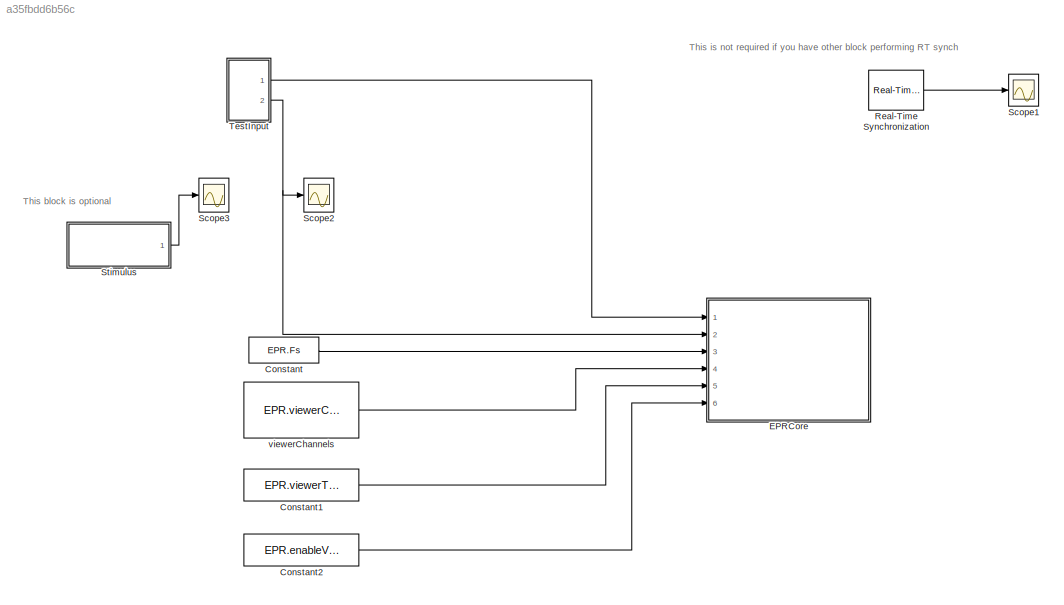
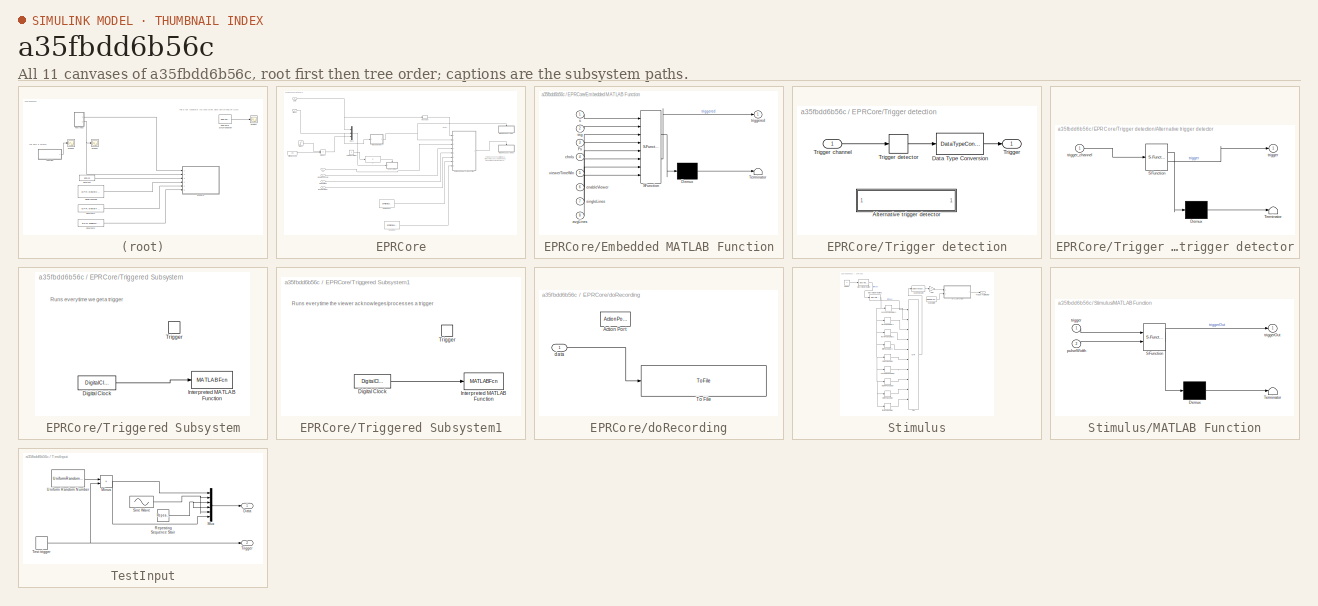
[diagram: thumbnail index - all 11 canvases of the model, root first then tree order]
MODEL slx_a35fbdd6b56c
KIND model
CONFIG AbsTol = auto
CONFIG EnableMultiTasking = off
CONFIG FixedStep = auto
CONFIG InitFcn = eprecorder_mdl_init_callback();\n
CONFIG MaxStep = auto
CONFIG MinStep = auto
CONFIG RelTol = 1e-3
CONFIG SampleTimeConstraint = Unconstrained
CONFIG SolverName = ode5
CONFIG StartTime = 0.0
CONFIG StopFcn = eprecorder_mdl_stop_callback;\n
CONFIG StopTime = inf
BLOCK [Constant] Constant
  Value = EPR.Fs
BLOCK [Constant] Constant1
  Value = EPR.viewerTimeWin
BLOCK [Constant] Constant2
  Value = EPR.enableViewer
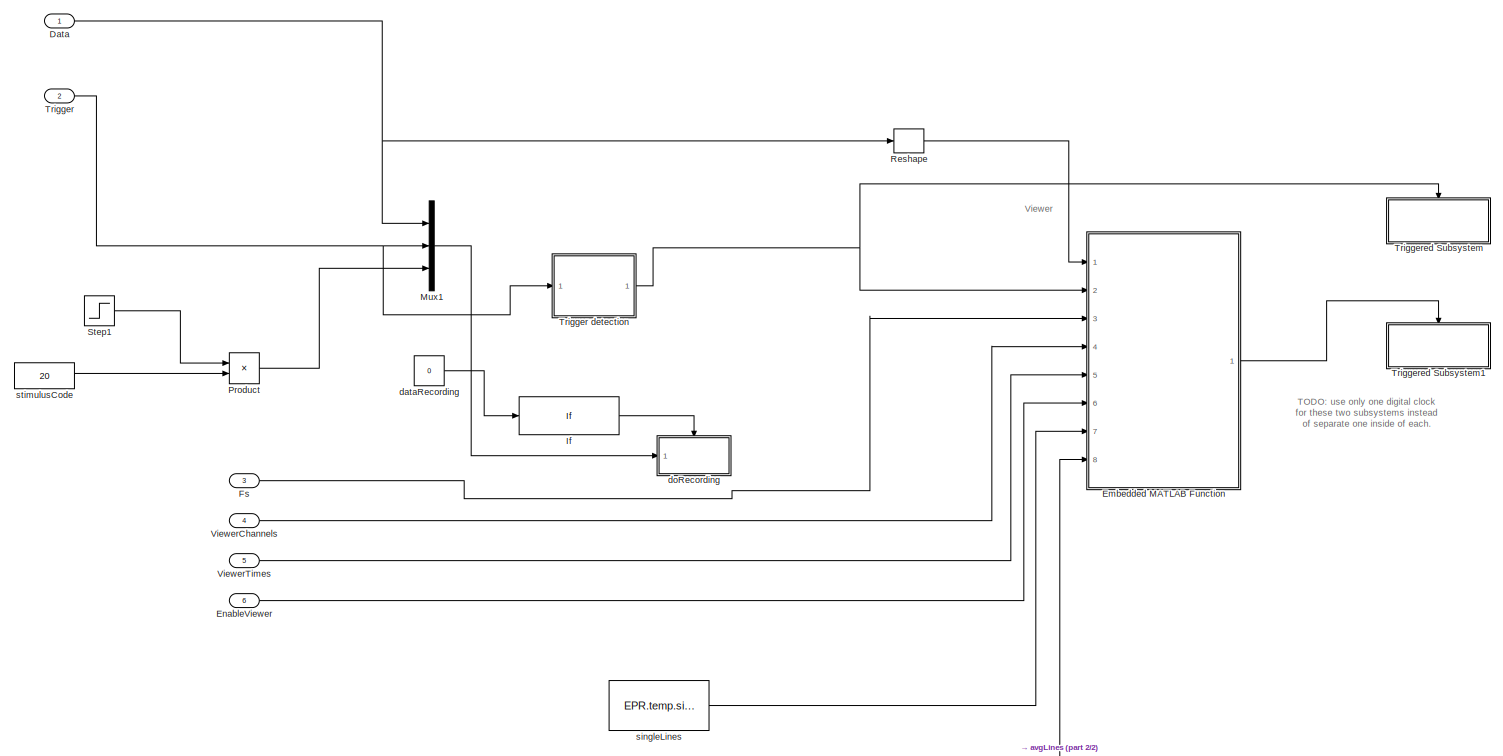
[diagram: EPRCore - part 1/2, most of the canvas]
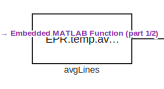
[diagram: EPRCore - part 2/2, bottom center region]
BLOCK [SubSystem] EPRCore
  Ports = [6]
  RequestExecContextInheritance = off
BLOCK [Inport] EPRCore/Data
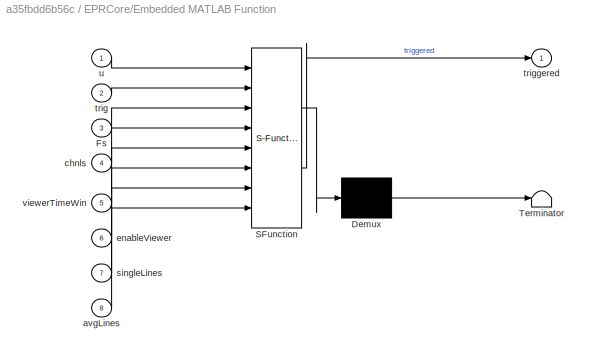
BLOCK [SubSystem] EPRCore/Embedded MATLAB Function
  ErrorFcn = Stateflow.Translate.translate
  PermitHierarchicalResolution = ExplicitOnly
  Ports = [8, 1]
  RequestExecContextInheritance = off
  SFBlockType = MATLAB Function
  TreatAsAtomicUnit = on
BLOCK [Demux] EPRCore/Embedded MATLAB Function/ Demux 
  Outputs = 1
  Ports = [1, 1]
BLOCK [S-Function] EPRCore/Embedded MATLAB Function/ SFunction 
  EnableBusSupport = on
  FunctionName = sf_sfun
  PortCounts = [8 2]
  Ports = [8, 2]
  SFcnIsStateOwnerBlock = off
  SFunctionDeploymentMode = off
  Tag = Stateflow S-Function 1
BLOCK [Terminator] EPRCore/Embedded MATLAB Function/ Terminator 
BLOCK [Inport] EPRCore/Embedded MATLAB Function/Fs
  Port = 3
BLOCK [Inport] EPRCore/Embedded MATLAB Function/avgLines
  Port = 8
BLOCK [Inport] EPRCore/Embedded MATLAB Function/chnls
  Port = 4
BLOCK [Inport] EPRCore/Embedded MATLAB Function/enableViewer
  Port = 6
BLOCK [Inport] EPRCore/Embedded MATLAB Function/singleLines
  Port = 7
BLOCK [Inport] EPRCore/Embedded MATLAB Function/trig
  Port = 2
BLOCK [Outport] EPRCore/Embedded MATLAB Function/triggered
BLOCK [Inport] EPRCore/Embedded MATLAB Function/u
BLOCK [Inport] EPRCore/Embedded MATLAB Function/viewerTimeWin
  Port = 5
BLOCK [Inport] EPRCore/EnableViewer
  Port = 6
BLOCK [Inport] EPRCore/Fs
  Port = 3
BLOCK [If] EPRCore/If
  Ports = [1, 1]
  ShowElse = off
BLOCK [Mux] EPRCore/Mux1
  DisplayOption = bar
  Inputs = 3
  Ports = [3, 1]
BLOCK [Product] EPRCore/Product
  Ports = [2, 1]
BLOCK [Reshape] EPRCore/Reshape
  Ports = [1, 1]
BLOCK [Step] EPRCore/Step1
  Before = 1
  SampleTime = 0
BLOCK [Inport] EPRCore/Trigger
  Port = 2
BLOCK [SubSystem] EPRCore/Trigger detection
  Ports = [1, 1]
  RequestExecContextInheritance = off
BLOCK [SubSystem] EPRCore/Trigger detection/Alternative trigger detector
  Commented = on
  ErrorFcn = Stateflow.Translate.translate
  PermitHierarchicalResolution = ExplicitOnly
  Ports = [1, 1]
  RequestExecContextInheritance = off
  SFBlockType = MATLAB Function
  TreatAsAtomicUnit = on
BLOCK [Demux] EPRCore/Trigger detection/Alternative trigger detector/ Demux 
  Outputs = 1
  Ports = [1, 1]
BLOCK [S-Function] EPRCore/Trigger detection/Alternative trigger detector/ SFunction 
  EnableBusSupport = on
  FunctionName = sf_sfun
  PortCounts = [1 2]
  Ports = [1, 2]
  SFcnIsStateOwnerBlock = off
  SFunctionDeploymentMode = off
  Tag = Stateflow S-Function 2
BLOCK [Terminator] EPRCore/Trigger detection/Alternative trigger detector/ Terminator 
BLOCK [Outport] EPRCore/Trigger detection/Alternative trigger detector/trigger
BLOCK [Inport] EPRCore/Trigger detection/Alternative trigger detector/trigger_channel
BLOCK [DataTypeConversion] EPRCore/Trigger detection/Data Type Conversion
  RndMeth = Floor
  SaturateOnIntegerOverflow = off
BLOCK [Outport] EPRCore/Trigger detection/Trigger
BLOCK [Inport] EPRCore/Trigger detection/Trigger channel
BLOCK [HitCross] EPRCore/Trigger detection/Trigger detector
  HitCrossingDirection = rising
  HitCrossingOffset = 1
  Ports = [1, 1]
BLOCK [SubSystem] EPRCore/Triggered Subsystem
  Ports = [0, 0, 0, 1]
  RequestExecContextInheritance = off
  TreatAsAtomicUnit = on
BLOCK [DigitalClock] EPRCore/Triggered Subsystem/Digital Clock
  SampleTime = -1
BLOCK [MATLABFcn] EPRCore/Triggered Subsystem/Interpreted MATLAB Function
  MATLABFcn = eprecorder_online_on_triggered(u)
  OutputDimensions = 0
  Ports = [1]
BLOCK [TriggerPort] EPRCore/Triggered Subsystem/Trigger
  Ports = []
  StatesWhenEnabling = held
  TriggerTime = on sample time hit
  VariantControl = (inherit)
BLOCK [SubSystem] EPRCore/Triggered Subsystem1
  Ports = [0, 0, 0, 1]
  RequestExecContextInheritance = off
  TreatAsAtomicUnit = on
BLOCK [DigitalClock] EPRCore/Triggered Subsystem1/Digital Clock
  SampleTime = -1
BLOCK [MATLABFcn] EPRCore/Triggered Subsystem1/Interpreted MATLAB Function
  MATLABFcn = eprecorder_online_on_viewer_triggered(u)
  OutputDimensions = 0
  Ports = [1]
BLOCK [TriggerPort] EPRCore/Triggered Subsystem1/Trigger
  Ports = []
  StatesWhenEnabling = held
  TriggerTime = on sample time hit
  VariantControl = (inherit)
BLOCK [Inport] EPRCore/ViewerChannels
  Port = 4
BLOCK [Inport] EPRCore/ViewerTimes
  Port = 5
BLOCK [Constant] EPRCore/avgLines
  Value = EPR.temp.avgLines
BLOCK [Constant] EPRCore/dataRecording
  Value = 0
BLOCK [SubSystem] EPRCore/doRecording
  Ports = [1, 0, 0, 0, 0, 0, 0, 1]
  RequestExecContextInheritance = off
  TreatAsAtomicUnit = on
BLOCK [ActionPort] EPRCore/doRecording/Action Port
  ActionPortLabel = if(u1 > 0)
BLOCK [ToFile] EPRCore/doRecording/To File
  Filename = EPRNoData.mat
  MatrixName = EPdata
  Ports = [1]
BLOCK [Inport] EPRCore/doRecording/data
BLOCK [Constant] EPRCore/singleLines
  Value = EPR.temp.singleLines
BLOCK [Constant] EPRCore/stimulusCode
  Value = 20
BLOCK [Reference] Real-Time Synchronization  REF=sldrtlib/Real-Time
Synchronization
  Commented = on
  Ports = [0, 1]
  SourceBlock = sldrtlib/Real-Time\nSynchronization
  SourceProductBaseCode = WT
  SourceType = Simulink Desktop Real-Time Synchronization
BLOCK [Scope] Scope1
  Floating = off
  NumInputPorts = 1
  Ports = [1]
  ScopeSpecificationString = Simulink.scopes.TimeScopeBlockCfg('CurrentConfiguration', extmgr.ConfigurationSet(extmgr.Configuration('Core','General UI',true),extmgr.Configuration('Core','Source UI',true),extmgr.Configuration('Sources','WiredSimulink',true,'DataLoggingVariableName','ScopeData1'),extmgr.Configuration('Visuals','Time Domain',true,'SerializedDisplays',{struct('MinYLimReal','-3.125','MaxYLimReal','28.125','YLabelR...<+1391ch>
BLOCK [Scope] Scope2
  Floating = off
  NumInputPorts = 1
  Ports = [1]
  ScopeSpecificationString = Simulink.scopes.TimeScopeBlockCfg('CurrentConfiguration', extmgr.ConfigurationSet(extmgr.Configuration('Core','General UI',true),extmgr.Configuration('Core','Source UI',true),extmgr.Configuration('Sources','WiredSimulink',true,'DataLoggingVariableName','ScopeData1'),extmgr.Configuration('Visuals','Time Domain',true,'SerializedDisplays',{struct('MinYLimReal','-0.25','MaxYLimReal','2.25','YLabelReal...<+1489ch>
BLOCK [Scope] Scope3
  Floating = off
  NumInputPorts = 1
  Ports = [1]
  ScopeSpecificationString = Simulink.scopes.TimeScopeBlockCfg('CurrentConfiguration', extmgr.ConfigurationSet(extmgr.Configuration('Core','General UI',true),extmgr.Configuration('Core','Source UI',true),extmgr.Configuration('Sources','WiredSimulink',true,'DataLoggingVariableName','ScopeData1'),extmgr.Configuration('Visuals','Time Domain',true,'SerializedDisplays',{struct('MinYLimReal','-0.13252','MaxYLimReal','5.16659','YLab...<+1534ch>
BLOCK [SubSystem] Stimulus
  Ports = [0, 1]
  RequestExecContextInheritance = off
BLOCK [DataTypeConversion] Stimulus/Cast To Double
  OutDataTypeStr = double
  RndMeth = Floor
  SaturateOnIntegerOverflow = off
BLOCK [Reference] Stimulus/Discrete Derivative  REF=simulink/Discrete/Discrete Derivative
  Ports = [1, 1]
  SourceBlock = simulink/Discrete/Discrete Derivative
  SourceProductBaseCode = SL
  SourceType = Discrete Derivative
BLOCK [Reference] Stimulus/Discrete Derivative1  REF=simulink/Discrete/Discrete Derivative
  Ports = [1, 1]
  SourceBlock = simulink/Discrete/Discrete Derivative
  SourceProductBaseCode = SL
  SourceType = Discrete Derivative
BLOCK [Gain] Stimulus/Gain
  Gain = 5
BLOCK [SubSystem] Stimulus/MATLAB Function
  ErrorFcn = Stateflow.Translate.translate
  PermitHierarchicalResolution = ExplicitOnly
  Ports = [2, 1]
  RequestExecContextInheritance = off
  SFBlockType = MATLAB Function
  TreatAsAtomicUnit = on
BLOCK [Demux] Stimulus/MATLAB Function/ Demux 
  Outputs = 1
  Ports = [1, 1]
BLOCK [S-Function] Stimulus/MATLAB Function/ SFunction 
  EnableBusSupport = on
  FunctionName = sf_sfun
  PortCounts = [2 2]
  Ports = [2, 2]
  SFcnIsStateOwnerBlock = off
  SFunctionDeploymentMode = off
  Tag = Stateflow S-Function 5
BLOCK [Terminator] Stimulus/MATLAB Function/ Terminator 
BLOCK [Inport] Stimulus/MATLAB Function/pulseWidth
  Port = 2
BLOCK [Inport] Stimulus/MATLAB Function/trigger
BLOCK [Outport] Stimulus/MATLAB Function/triggerOut
BLOCK [Logic] Stimulus/OR1
  AllPortsSameDT = off
  IconShape = distinctive
  Inputs = 10
  Operator = OR
  OutDataTypeStr = boolean
  Ports = [10, 1]
BLOCK [Outport] Stimulus/TriggerToStimulator
BLOCK [Delay] Stimulus/eighthPulseDelay
  DelayLength = EPR.Fs*(EPR.ISI(7)/1000)
  InputPortMap = u0
  Ports = [1, 1]
BLOCK [Delay] Stimulus/fifthPulseDelay1
  DelayLength = EPR.Fs*(EPR.ISI(4)/1000)
  InputPortMap = u0
  Ports = [1, 1]
BLOCK [Delay] Stimulus/fourthPulseDelay1
  DelayLength = EPR.Fs*(EPR.ISI(3)/1000)
  InputPortMap = u0
  Ports = [1, 1]
BLOCK [Delay] Stimulus/ninthPulseDelay
  DelayLength = EPR.Fs*(EPR.ISI(8)/1000)
  InputPortMap = u0
  Ports = [1, 1]
BLOCK [Constant] Stimulus/pulsewidth
  Value = ceil(EPR.Fs*EPR.stimulusTriggerPulseWidth/1000)
BLOCK [Delay] Stimulus/secondPulseDelay1
  DelayLength = EPR.Fs*(EPR.ISI(1)/1000)
  InputPortMap = u0
  Ports = [1, 1]
BLOCK [Delay] Stimulus/seventhPulseDelay
  DelayLength = EPR.Fs*(EPR.ISI(6)/1000)
  InputPortMap = u0
  Ports = [1, 1]
BLOCK [Delay] Stimulus/sixthPulseDelay
  DelayLength = EPR.Fs*(EPR.ISI(5)/1000)
  InputPortMap = u0
  Ports = [1, 1]
BLOCK [Delay] Stimulus/tenthPulseDelay
  DelayLength = EPR.Fs*(EPR.ISI(9)/1000)
  InputPortMap = u0
  Ports = [1, 1]
BLOCK [Delay] Stimulus/thirdPulseDelay1
  DelayLength = EPR.Fs*(EPR.ISI(2)/1000)
  InputPortMap = u0
  Ports = [1, 1]
BLOCK [Constant] Stimulus/trigger
  Value = 4
BLOCK [SubSystem] TestInput
  Ports = [0, 2]
  RequestExecContextInheritance = off
BLOCK [Outport] TestInput/Data
BLOCK [Sum] TestInput/Minus
  IconShape = rectangular
  Ports = [2, 1]
BLOCK [Mux] TestInput/Mux
  DisplayOption = bar
  Inputs = 6
  Ports = [6, 1]
BLOCK [Reference] TestInput/Repeating Sequence Stair  REF=simulink/Sources/Repeating
Sequence
Stair
  Ports = [0, 1]
  SourceBlock = simulink/Sources/Repeating\nSequence\nStair
  SourceProductBaseCode = SL
  SourceType = Repeating Sequence Stair
BLOCK [Sin] TestInput/Sine Wave
  Ports = [0, 1]
  SampleTime = 0
BLOCK [DiscretePulseGenerator] TestInput/Test trigger
  Amplitude = 4
  Period = 3*EPR.Fs
  Ports = [0, 1]
  PulseWidth = max(round(0.001*EPR.Fs),1)
  SampleTime = 1/EPR.Fs
BLOCK [Outport] TestInput/Trigger
  Port = 2
BLOCK [UniformRandomNumber] TestInput/Uniform Random Number
  SampleTime = 1/EPR.Fs
BLOCK [Constant] viewerChannels
  Value = EPR.viewerChannels
ANNOTATION (root): This block is optional
ANNOTATION (root): This is not required if you have other block performing RT synch
ANNOTATION EPRCore: TODO: use only one digital clock for these two subsystems instead of separate one inside of each.
ANNOTATION EPRCore: Viewer
ANNOTATION EPRCore/Triggered Subsystem: Runs everytime we get a trigger
ANNOTATION EPRCore/Triggered Subsystem1: Runs everytime the viewer acknowleges/processes a trigger
LINE Constant1:1 -> EPRCore:5
LINE Constant2:1 -> EPRCore:6
LINE Constant:1 -> EPRCore:3
NET EPRCore/Data:1 -> EPRCore/Mux1:1, EPRCore/Reshape:1
LINE EPRCore/Embedded MATLAB Function:1 -> EPRCore/Triggered Subsystem1:trigger
LINE EPRCore/EnableViewer:1 -> EPRCore/Embedded MATLAB Function:6
LINE EPRCore/Fs:1 -> EPRCore/Embedded MATLAB Function:3
LINE EPRCore/If:1 -> EPRCore/doRecording:ifaction
LINE EPRCore/Mux1:1 -> EPRCore/doRecording:1
LINE EPRCore/Product:1 -> EPRCore/Mux1:3
LINE EPRCore/Reshape:1 -> EPRCore/Embedded MATLAB Function:1
LINE EPRCore/Step1:1 -> EPRCore/Product:1
LINE EPRCore/Trigger detection/Data Type Conversion:1 -> EPRCore/Trigger detection/Trigger:1
LINE EPRCore/Trigger detection/Trigger channel:1 -> EPRCore/Trigger detection/Trigger detector:1
LINE EPRCore/Trigger detection/Trigger detector:1 -> EPRCore/Trigger detection/Data Type Conversion:1
NET EPRCore/Trigger detection:1 -> EPRCore/Embedded MATLAB Function:2, EPRCore/Triggered Subsystem:trigger
NET EPRCore/Trigger:1 -> EPRCore/Mux1:2, EPRCore/Trigger detection:1
LINE EPRCore/Triggered Subsystem/Digital Clock:1 -> EPRCore/Triggered Subsystem/Interpreted MATLAB Function:1
LINE EPRCore/Triggered Subsystem1/Digital Clock:1 -> EPRCore/Triggered Subsystem1/Interpreted MATLAB Function:1
LINE EPRCore/ViewerChannels:1 -> EPRCore/Embedded MATLAB Function:4
LINE EPRCore/ViewerTimes:1 -> EPRCore/Embedded MATLAB Function:5
LINE EPRCore/avgLines:1 -> EPRCore/Embedded MATLAB Function:8
LINE EPRCore/dataRecording:1 -> EPRCore/If:1
LINE EPRCore/doRecording/data:1 -> EPRCore/doRecording/To File:1
LINE EPRCore/singleLines:1 -> EPRCore/Embedded MATLAB Function:7
LINE EPRCore/stimulusCode:1 -> EPRCore/Product:2
LINE Real-Time Synchronization:1 -> Scope1:1
LINE Stimulus/Cast To Double:1 -> Stimulus/Gain:1
NET Stimulus/Discrete Derivative1:1 -> Stimulus/OR1:1, Stimulus/eighthPulseDelay:1, Stimulus/fifthPulseDelay1:1, Stimulus/fourthPulseDelay1:1, Stimulus/ninthPulseDelay:1, Stimulus/secondPulseDelay1:1, Stimulus/seventhPulseDelay:1, Stimulus/sixthPulseDelay:1, Stimulus/tenthPulseDelay:1, Stimulus/thirdPulseDelay1:1
LINE Stimulus/Discrete Derivative:1 -> Stimulus/Discrete Derivative1:1
LINE Stimulus/Gain:1 -> Stimulus/MATLAB Function:1
LINE Stimulus/MATLAB Function:1 -> Stimulus/TriggerToStimulator:1
LINE Stimulus/OR1:1 -> Stimulus/Cast To Double:1
LINE Stimulus/eighthPulseDelay:1 -> Stimulus/OR1:8
LINE Stimulus/fifthPulseDelay1:1 -> Stimulus/OR1:5
LINE Stimulus/fourthPulseDelay1:1 -> Stimulus/OR1:4
LINE Stimulus/ninthPulseDelay:1 -> Stimulus/OR1:9
LINE Stimulus/pulsewidth:1 -> Stimulus/MATLAB Function:2
LINE Stimulus/secondPulseDelay1:1 -> Stimulus/OR1:2
LINE Stimulus/seventhPulseDelay:1 -> Stimulus/OR1:7
LINE Stimulus/sixthPulseDelay:1 -> Stimulus/OR1:6
LINE Stimulus/tenthPulseDelay:1 -> Stimulus/OR1:10
LINE Stimulus/thirdPulseDelay1:1 -> Stimulus/OR1:3
LINE Stimulus/trigger:1 -> Stimulus/Discrete Derivative:1
LINE Stimulus:1 -> Scope3:1
NET TestInput/Minus:1 -> TestInput/Mux:1, TestInput/Mux:6
LINE TestInput/Mux:1 -> TestInput/Data:1
NET TestInput/Repeating Sequence Stair:1 -> TestInput/Mux:3, TestInput/Mux:4
NET TestInput/Sine Wave:1 -> TestInput/Mux:2, TestInput/Mux:5
NET TestInput/Test trigger:1 -> TestInput/Minus:2, TestInput/Trigger:1
LINE TestInput/Uniform Random Number:1 -> TestInput/Minus:1
LINE TestInput:1 -> EPRCore:1
NET TestInput:2 -> EPRCore:2, Scope2:1
LINE viewerChannels:1 -> EPRCore:4
note: NET lines group one-source signal fan-out (src -> all destinations, sorted); 1:1 wires keep LINE
CHART EPRCore/Embedded
MATLAB Function states=1 transitions=1
  STATE_LABEL 'eML_blk_kernel()'
  STATE_LABEL "SCRIPT:\nfunction triggered=fcn(u,trig,Fs,chnls,viewerTimeWin,enableViewer,singleLines,avgLines)\n%#codegen\ncoder.extrinsic('set');\n%% EPR viewer\n% [INPUT]\n% u: Current data.\n% trig: Trigger channel. Trigger is detected when value is 1 or greater. A\n% trigger is ignored if it collides with a previous trigger. The implicit\n% collision detection is based on viewerTimeWin arguement.\n% Fs: Sample rate.\n...<+2953ch>"
CHART EPRCore/Trigger detection/Alternative trigger detector states=1 transitions=1
  STATE_LABEL 'eML_blk_kernel()'
  STATE_LABEL 'SCRIPT:\nfunction trigger = fcn(trigger_channel)\n% Outputs 1 when trigger_channel is at least 1, or zero otherwise.\npersistent prev_trigger_channel;\n\nthresh=1;% detection threshold\n\nif(isempty(prev_trigger_channel))\n    prev_trigger_channel=0;\nend\n\ntrigger=0;\nif( (trigger_channel-prev_trigger_channel) >=thresh)\n    trigger=1;\nend\n\nprev_trigger_channel=trigger_channel;\n'
CHART Stimulus/MATLAB Function states=1 transitions=1
  STATE_LABEL 'eML_blk_kernel()'
  STATE_LABEL 'SCRIPT:\nfunction triggerOut = fcn(trigger,pulseWidth)\n    % Hold the trigger until pulse width is reached.\n    % [INPUT]\n    % trigger: the value of the trigger.\n    % pulseWidth: the pulse width in samples.\n\n    persistent heldTrigger t;\n    if isempty(t)\n        t=0;\n        heldTrigger=0;\n    end\n\n    if trigger>0\n        t=pulseWidth;\n        heldTrigger=trigger;\n    end\n    \n    if(t>0)\n     ...<+88ch>'
CHART  states=0 transitions=0
CHART  states=0 transitions=0
CHART  states=0 transitions=0
